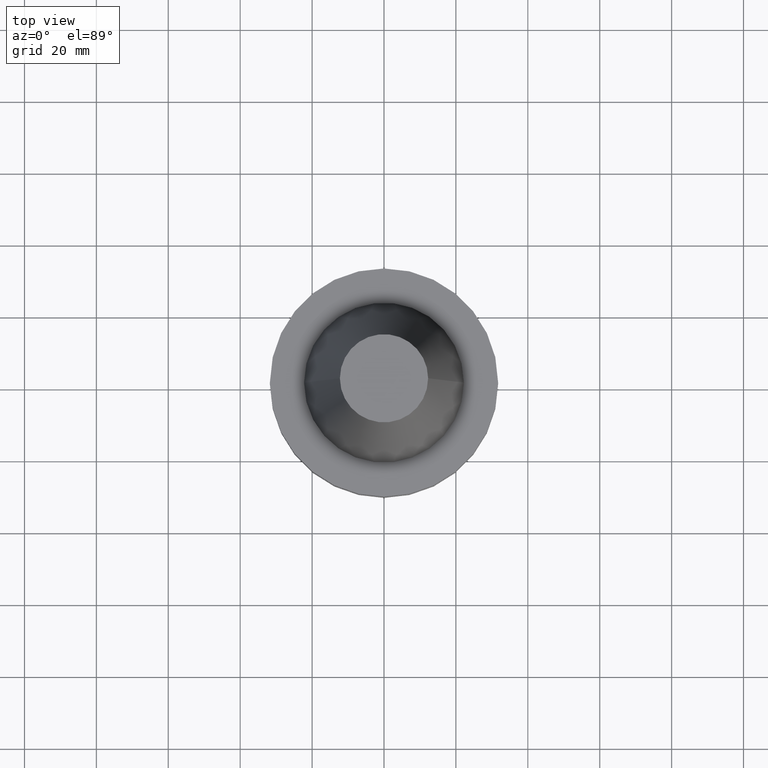
[diagram: clean part render]
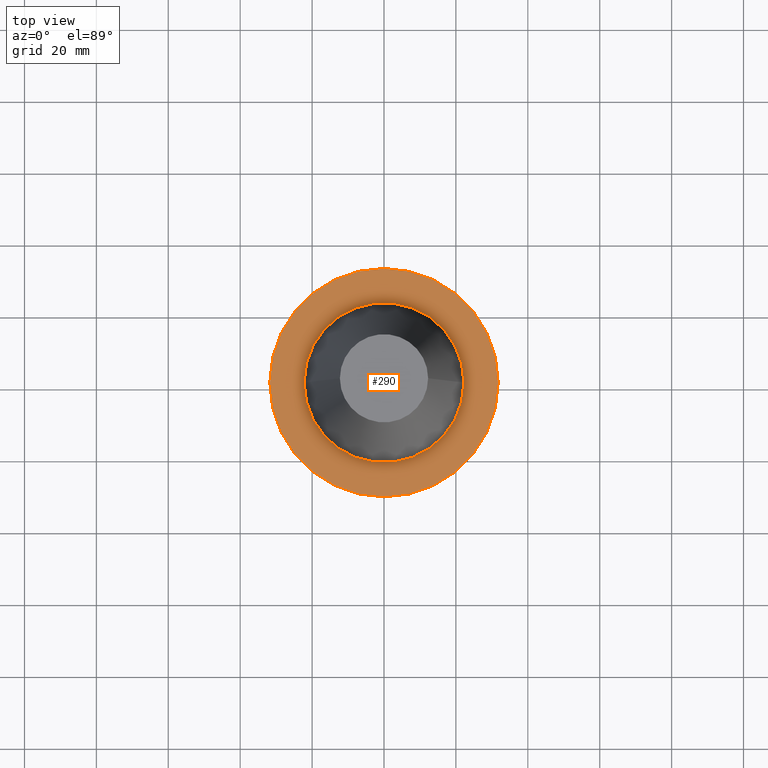
[diagram: same view with one face highlighted and labeled with its STEP entity id]
A machine part, top view. The second image highlights one B-rep face of the part: STEP entity #290.
In plain terms, the highlighted planar face has unit normal (0, 0, -1).
Its self-contained STEP definition (entity closure, byte-faithful):
#11 = ORIENTED_EDGE ( 'NONE', *, *, #603, .T. ) ;
#24 = PLANE ( 'NONE',  #212 ) ;
#35 = DIRECTION ( 'NONE',  ( -1.000000000000000000, 0.000000000000000000, -0.000000000000000000 ) ) ;
#40 = CIRCLE ( 'NONE', #526, 22.22500000000000142 ) ;
#41 = CIRCLE ( 'NONE', #501, 22.22500000000000142 ) ;
#44 = EDGE_LOOP ( 'NONE', ( #11, #803 ) ) ;
#45 = FACE_BOUND ( 'NONE', #699, .T. ) ;
#74 = DIRECTION ( 'NONE',  ( 1.000000000000000000, 0.000000000000000000, 0.000000000000000000 ) ) ;
#87 = DIRECTION ( 'NONE',  ( -0.000000000000000000, -0.000000000000000000, 1.000000000000000000 ) ) ;
#127 = CIRCLE ( 'NONE', #243, 31.75000000000000000 ) ;
#171 = CARTESIAN_POINT ( 'NONE',  ( 0.000000000000000000, 0.000000000000000000, -1.000000000000000888 ) ) ;
#212 = AXIS2_PLACEMENT_3D ( 'NONE', #292, #555, #35 ) ;
#226 = DIRECTION ( 'NONE',  ( 1.000000000000000000, 0.000000000000000000, 0.000000000000000000 ) ) ;
#230 = VERTEX_POINT ( 'NONE', #825 ) ;
#235 = DIRECTION ( 'NONE',  ( 1.000000000000000000, 0.000000000000000000, 0.000000000000000000 ) ) ;
#240 = ORIENTED_EDGE ( 'NONE', *, *, #625, .F. ) ;
#243 = AXIS2_PLACEMENT_3D ( 'NONE', #762, #438, #696 ) ;
#290 = ADVANCED_FACE ( 'NONE', ( #45, #370 ), #24, .F. ) ;
#292 = CARTESIAN_POINT ( 'NONE',  ( 0.000000000000000000, 31.75000000000000000, -0.9999999999999995559 ) ) ;
#316 = CARTESIAN_POINT ( 'NONE',  ( -31.75000000000000000, 3.888253587292846476E-15, -1.000000000000000888 ) ) ;
#338 = VERTEX_POINT ( 'NONE', #316 ) ;
#339 = CARTESIAN_POINT ( 'NONE',  ( 0.000000000000000000, 0.000000000000000000, -1.000000000000000888 ) ) ;
#363 = CARTESIAN_POINT ( 'NONE',  ( 31.75000000000000000, 0.000000000000000000, -1.000000000000000888 ) ) ;
#370 = FACE_OUTER_BOUND ( 'NONE', #44, .T. ) ;
#418 = CARTESIAN_POINT ( 'NONE',  ( -22.22500000000000142, 2.721777511104992849E-15, -1.000000000000000888 ) ) ;
#438 = DIRECTION ( 'NONE',  ( -0.000000000000000000, -0.000000000000000000, 1.000000000000000000 ) ) ;
#501 = AXIS2_PLACEMENT_3D ( 'NONE', #171, #569, #226 ) ;
#526 = AXIS2_PLACEMENT_3D ( 'NONE', #339, #669, #74 ) ;
#555 = DIRECTION ( 'NONE',  ( 0.000000000000000000, 0.000000000000000000, -1.000000000000000000 ) ) ;
#569 = DIRECTION ( 'NONE',  ( -0.000000000000000000, -0.000000000000000000, 1.000000000000000000 ) ) ;
#590 = EDGE_CURVE ( 'NONE', #230, #609, #40, .T. ) ;
#603 = EDGE_CURVE ( 'NONE', #701, #338, #774, .T. ) ;
#609 = VERTEX_POINT ( 'NONE', #418 ) ;
#625 = EDGE_CURVE ( 'NONE', #609, #230, #41, .T. ) ;
#639 = AXIS2_PLACEMENT_3D ( 'NONE', #747, #87, #235 ) ;
#669 = DIRECTION ( 'NONE',  ( -0.000000000000000000, -0.000000000000000000, 1.000000000000000000 ) ) ;
#696 = DIRECTION ( 'NONE',  ( 1.000000000000000000, 0.000000000000000000, 0.000000000000000000 ) ) ;
#699 = EDGE_LOOP ( 'NONE', ( #769, #240 ) ) ;
#701 = VERTEX_POINT ( 'NONE', #363 ) ;
#727 = EDGE_CURVE ( 'NONE', #338, #701, #127, .T. ) ;
#747 = CARTESIAN_POINT ( 'NONE',  ( 0.000000000000000000, 0.000000000000000000, -1.000000000000000888 ) ) ;
#762 = CARTESIAN_POINT ( 'NONE',  ( 0.000000000000000000, 0.000000000000000000, -1.000000000000000888 ) ) ;
#769 = ORIENTED_EDGE ( 'NONE', *, *, #590, .F. ) ;
#774 = CIRCLE ( 'NONE', #639, 31.75000000000000000 ) ;
#803 = ORIENTED_EDGE ( 'NONE', *, *, #727, .T. ) ;
#825 = CARTESIAN_POINT ( 'NONE',  ( 22.22500000000000142, 0.000000000000000000, -1.000000000000000888 ) ) ;